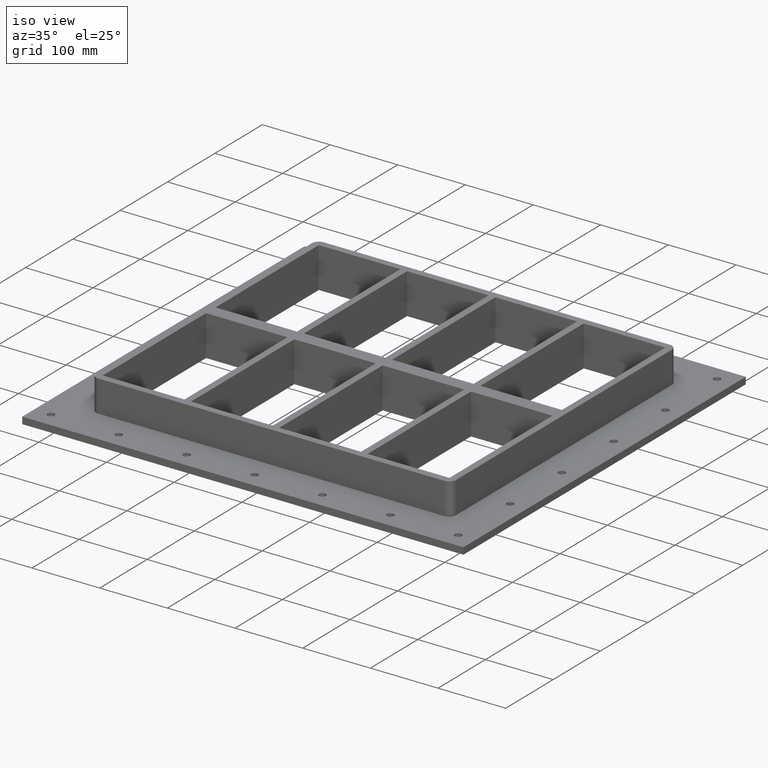
[diagram: clean part render]
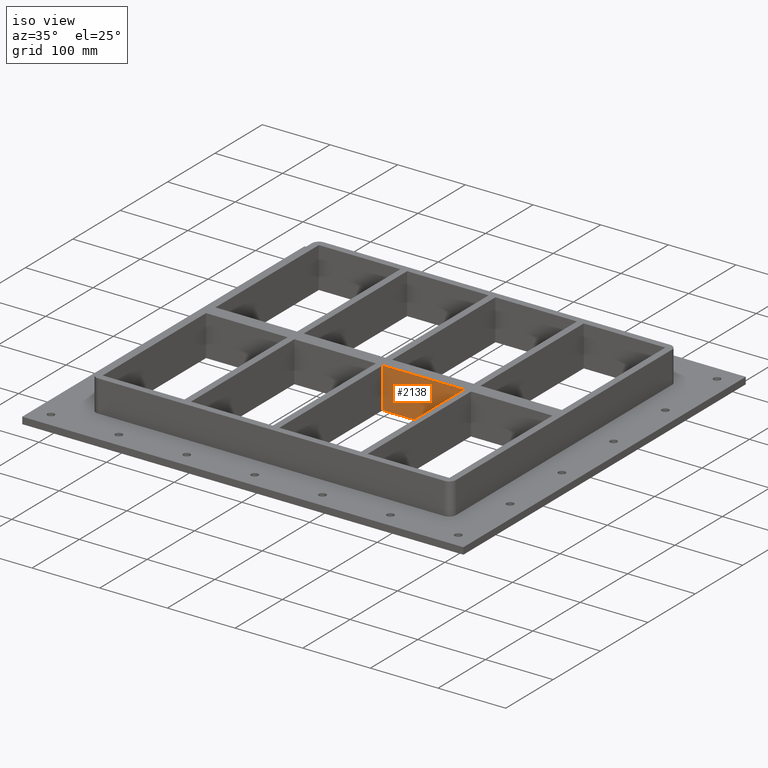
[diagram: same view with one face highlighted and labeled with its STEP entity id]
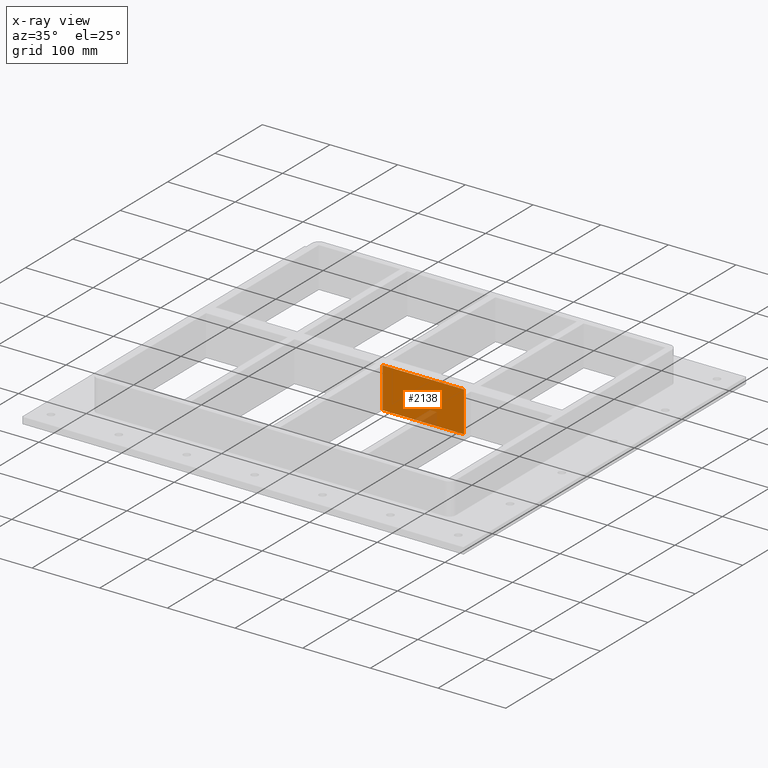
[diagram: x-ray of the same camera — body ghosted, the highlighted face saturated]
A machine part, iso view. The second image highlights one B-rep face of the part: STEP entity #2138.
The next image is the same camera in x-ray: the body ghosted, the highlighted face saturated — about 6% of this face is hidden behind the body in this view.
In plain terms, the highlighted planar face has unit normal (0, 1, 0).
Its self-contained STEP definition (entity closure, byte-faithful):
#1476=CARTESIAN_POINT('',(5.000000000000036,-10.000000000000036,-30.0));
#1477=VERTEX_POINT('',#1476);
#1494=CARTESIAN_POINT('',(125.50000000000009,-10.000000000000036,-30.0));
#1495=VERTEX_POINT('',#1494);
#1502=CARTESIAN_POINT('',(125.50000000000007,-10.000000000000021,-30.0));
#1503=DIRECTION('',(-1.0,0.0,0.0));
#1504=VECTOR('',#1503,120.50000000000003);
#1505=LINE('',#1502,#1504);
#1506=EDGE_CURVE('',#1495,#1477,#1505,.T.);
#2049=CARTESIAN_POINT('',(5.000000000000036,-10.000000000000036,30.0));
#2050=VERTEX_POINT('',#2049);
#2051=CARTESIAN_POINT('',(5.000000000000036,-10.000000000000036,30.0));
#2052=DIRECTION('',(0.0,0.0,-1.0));
#2053=VECTOR('',#2052,60.0);
#2054=LINE('',#2051,#2053);
#2055=EDGE_CURVE('',#2050,#1477,#2054,.T.);
#2105=CARTESIAN_POINT('',(125.50000000000009,-10.000000000000036,30.0));
#2106=VERTEX_POINT('',#2105);
#2113=CARTESIAN_POINT('',(125.50000000000009,-10.000000000000036,30.0));
#2114=DIRECTION('',(0.0,0.0,-1.0));
#2115=VECTOR('',#2114,60.0);
#2116=LINE('',#2113,#2115);
#2117=EDGE_CURVE('',#2106,#1495,#2116,.T.);
#2122=CARTESIAN_POINT('',(5.000000000000036,-10.000000000000036,30.0));
#2123=DIRECTION('',(0.0,1.0,0.0));
#2124=DIRECTION('',(1.0,0.0,0.0));
#2125=AXIS2_PLACEMENT_3D('',#2122,#2123,#2124);
#2126=PLANE('',#2125);
#2127=ORIENTED_EDGE('',*,*,#1506,.F.);
#2128=ORIENTED_EDGE('',*,*,#2117,.F.);
#2129=CARTESIAN_POINT('',(5.000000000000036,-10.000000000000036,30.0));
#2130=DIRECTION('',(1.0,0.0,0.0));
#2131=VECTOR('',#2130,120.50000000000003);
#2132=LINE('',#2129,#2131);
#2133=EDGE_CURVE('',#2050,#2106,#2132,.T.);
#2134=ORIENTED_EDGE('',*,*,#2133,.F.);
#2135=ORIENTED_EDGE('',*,*,#2055,.T.);
#2136=EDGE_LOOP('',(#2127,#2128,#2134,#2135));
#2137=FACE_OUTER_BOUND('',#2136,.T.);
#2138=ADVANCED_FACE('',(#2137),#2126,.F.);